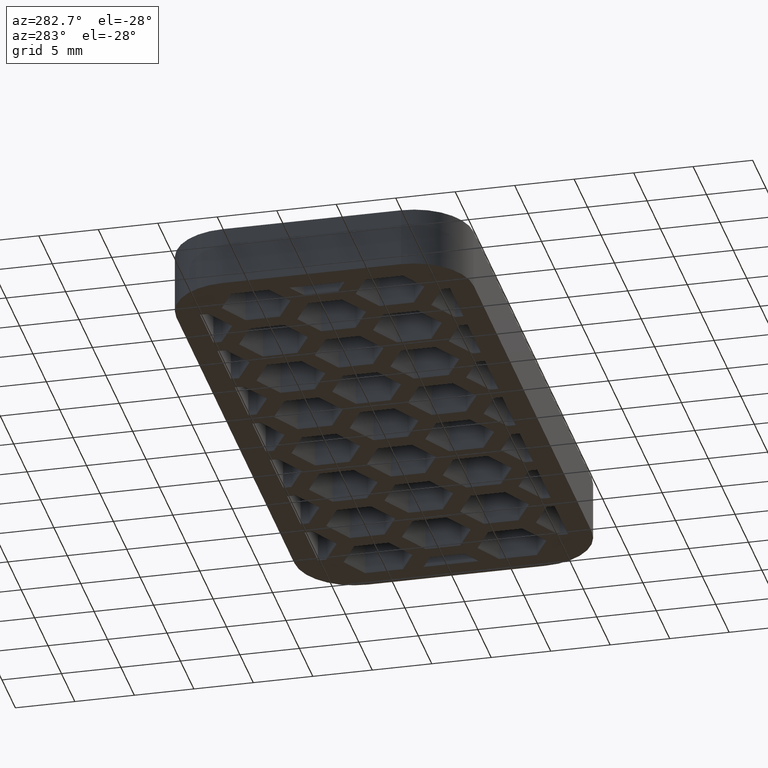
[diagram: clean part render]
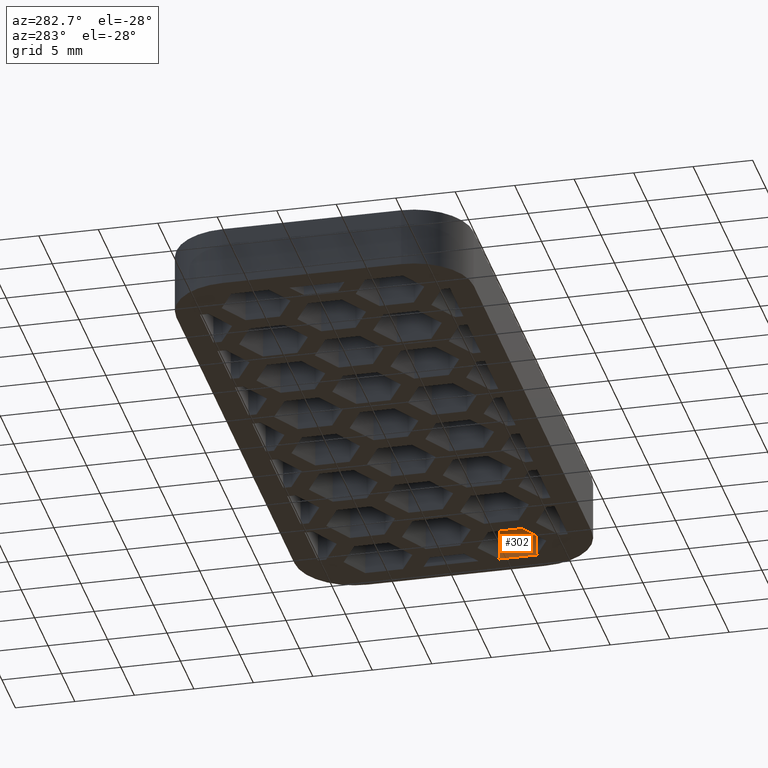
[diagram: same view with one face highlighted and labeled with its STEP entity id]
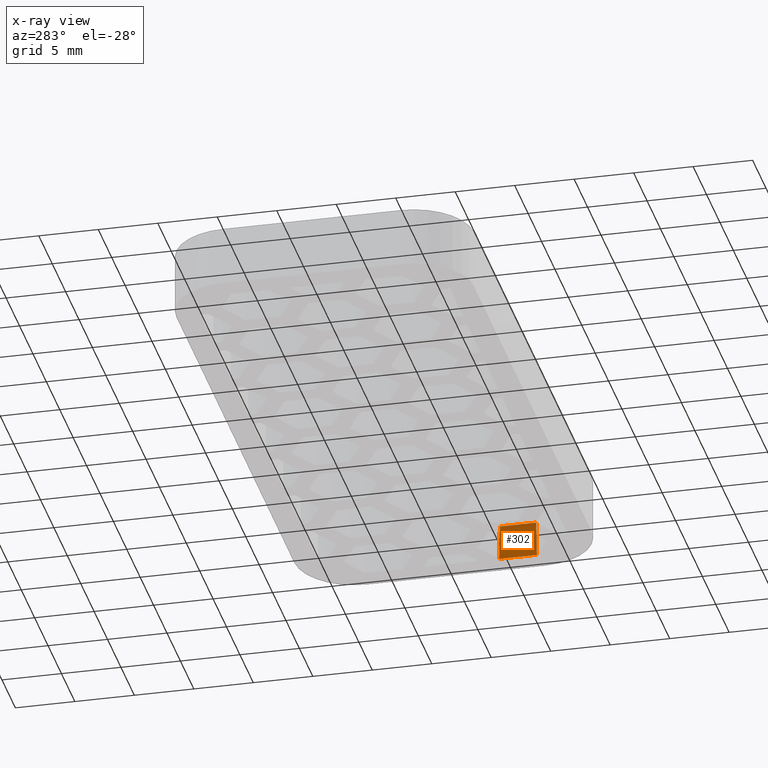
[diagram: x-ray of the same camera — body ghosted, the highlighted face saturated]
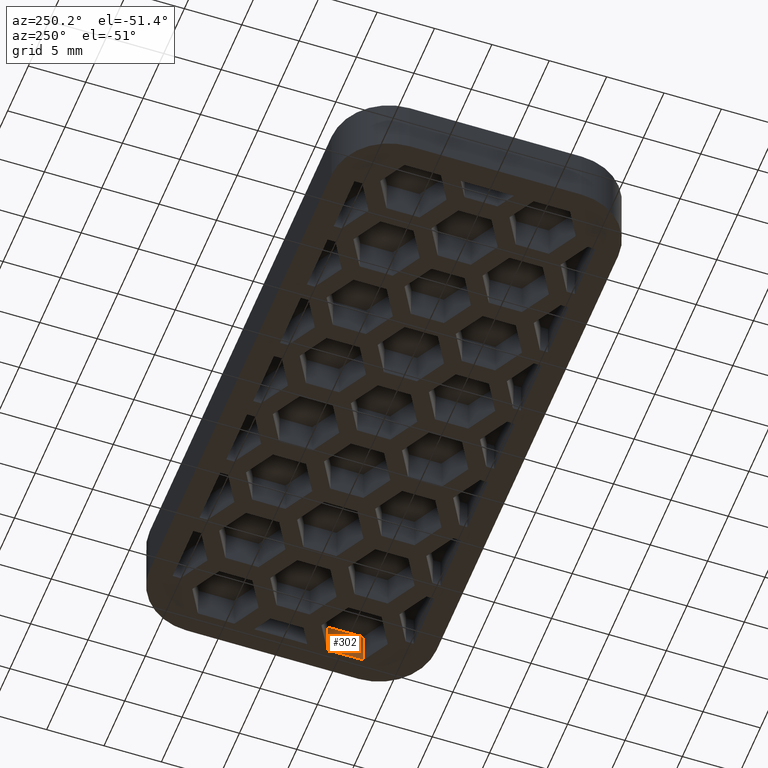
[diagram: same view with one face highlighted and labeled with its STEP entity id]
A machine part, auxiliary view. The second image highlights one B-rep face of the part: STEP entity #302.
The next image is the same camera in x-ray: the body ghosted, the highlighted face saturated — about 12% of this face is hidden behind the body in this view.
A second angle (auxiliary view) of the same face is appended — the face is thin or edge-on in the first view.
In plain terms, the highlighted planar face has unit normal (1, -0, 0).
Its self-contained STEP definition (entity closure, byte-faithful):
#302 = ADVANCED_FACE( '', ( #880 ), #881, .F. );
#880 = FACE_OUTER_BOUND( '', #1532, .T. );
#881 = PLANE( '', #1533 );
#1532 = EDGE_LOOP( '', ( #3525, #3526, #3527, #3528 ) );
#1533 = AXIS2_PLACEMENT_3D( '', #3529, #3530, #3531 );
#3525 = ORIENTED_EDGE( '', *, *, #4164, .F. );
#3526 = ORIENTED_EDGE( '', *, *, #4526, .T. );
#3527 = ORIENTED_EDGE( '', *, *, #4403, .F. );
#3528 = ORIENTED_EDGE( '', *, *, #4562, .T. );
#3529 = CARTESIAN_POINT( '', ( 25.0000000000000, -7.49999999999999, -1.00000000081550E-005 ) );
#3530 = DIRECTION( '', ( 1.00000000000000, -3.92831438892830E-031, 2.61147382207352E-017 ) );
#3531 = DIRECTION( '', ( -3.94430452610506E-031, -1.00000000000000, 6.12303176911189E-017 ) );
#4164 = EDGE_CURVE( '', #4977, #4978, #4979, .T. );
#4403 = EDGE_CURVE( '', #5439, #5441, #5442, .T. );
#4526 = EDGE_CURVE( '', #4977, #5441, #5631, .T. );
#4562 = EDGE_CURVE( '', #5439, #4978, #5683, .T. );
#4977 = VERTEX_POINT( '', #6293 );
#4978 = VERTEX_POINT( '', #6294 );
#4979 = LINE( '', #6295, #6296 );
#5439 = VERTEX_POINT( '', #6989 );
#5441 = VERTEX_POINT( '', #6992 );
#5442 = LINE( '', #6993, #6994 );
#5631 = LINE( '', #7303, #7304 );
#5683 = LINE( '', #7391, #7392 );
#6293 = CARTESIAN_POINT( '', ( 25.0000000000000, -7.21687836487033, 4.41891755019173E-016 ) );
#6294 = CARTESIAN_POINT( '', ( 25.0000000000000, -4.04145188432738, 2.47459382810736E-016 ) );
#6295 = CARTESIAN_POINT( '', ( 25.0000000000000, 7.50000000000001, -4.59227382683392E-016 ) );
#6296 = VECTOR( '', #8220, 1000.00000000000 );
#6989 = CARTESIAN_POINT( '', ( 25.0000000000000, -4.10191800293754, 3.00000000000000 ) );
#6992 = CARTESIAN_POINT( '', ( 25.0000000000000, -7.15641224626016, 3.00000000000000 ) );
#6993 = CARTESIAN_POINT( '', ( 25.0000000000000, -3.28575599888025E-015, 3.00000000000000 ) );
#6994 = VECTOR( '', #8467, 1000.00000000000 );
#7303 = CARTESIAN_POINT( '', ( 25.0000000000000, -7.22024854030190, -0.167209778419621 ) );
#7304 = VECTOR( '', #8594, 1000.00000000000 );
#7391 = CARTESIAN_POINT( '', ( 25.0000000000000, -4.03723183856959, -0.209375722542836 ) );
#7392 = VECTOR( '', #8630, 1000.00000000000 );
#8220 = DIRECTION( '', ( -1.59266588632689E-015, 1.00000000000000, -6.12303176911189E-017 ) );
#8467 = DIRECTION( '', ( -3.94430452610506E-031, -1.00000000000000, 6.12303176911189E-017 ) );
#8594 = DIRECTION( '', ( -2.61094354230380E-017, 0.0201512801671580, 0.999796942337605 ) );
#8630 = DIRECTION( '', ( 2.61094354230380E-017, 0.0201512801671579, -0.999796942337605 ) );